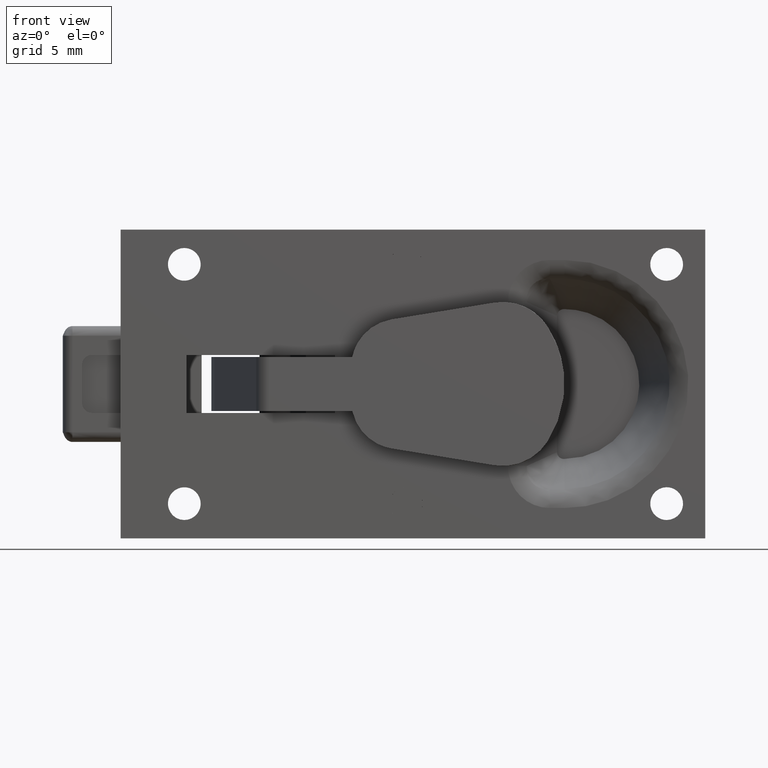
[diagram: clean part render]
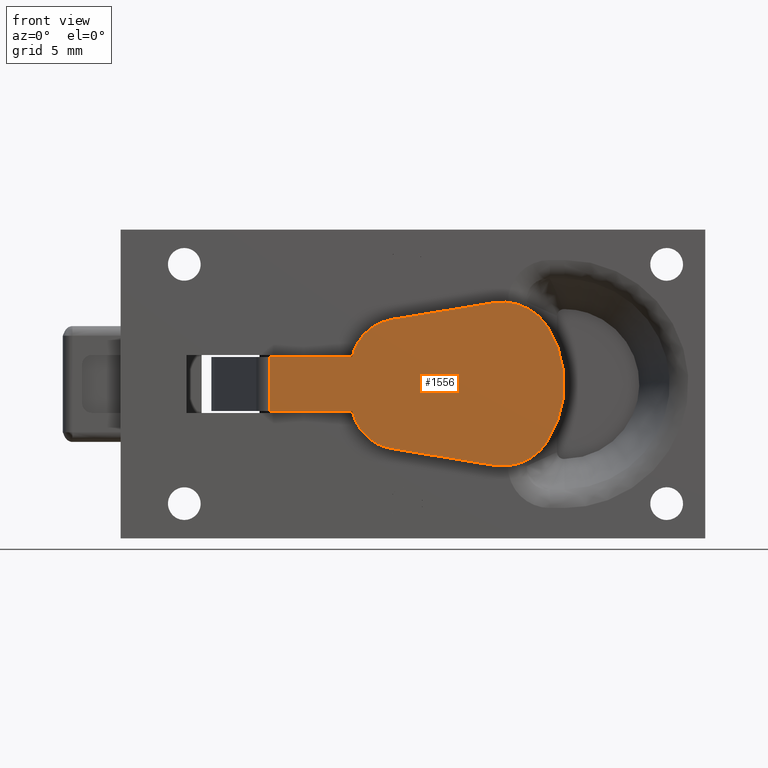
[diagram: same view with one face highlighted and labeled with its STEP entity id]
A machine part, front view. The second image highlights one B-rep face of the part: STEP entity #1556.
In plain terms, the highlighted face is a freeform B-spline surface patch.
Its self-contained STEP definition (entity closure, byte-faithful):
#1221=CARTESIAN_POINT('',(-0.301529039269911,-2.0,1.400010000000000));
#1222=VERTEX_POINT('',#1221);
#1243=CARTESIAN_POINT('',(-0.301529039269911,-2.0,-1.399993000000044));
#1244=VERTEX_POINT('',#1243);
#1258=CARTESIAN_POINT('',(-0.301529039269911,-2.0,-1.399993000000044));
#1259=CARTESIAN_POINT('',(-0.301529039269911,-2.0,1.400010000000000));
#1260=QUASI_UNIFORM_CURVE('',1,(#1258,#1259),.UNSPECIFIED.,.F.,.U.);
#1261=EDGE_CURVE('',#1244,#1222,#1260,.T.);
#1447=CARTESIAN_POINT('',(-1.065840374488280,-2.0,4.674531459337893));
#1448=CARTESIAN_POINT('',(15.764311532707801,-2.0,4.674531459337893));
#1449=CARTESIAN_POINT('',(-1.065840374488280,-2.0,-4.674531664287009));
#1450=CARTESIAN_POINT('',(15.764311532707801,-2.0,-4.674531664287009));
#1451=B_SPLINE_SURFACE_WITH_KNOTS('',1,1,((#1447,#1449),(#1448,#1450)),.UNSPECIFIED.,.F.,.F.,.U.,(2,2),(2,2),(0.0,16.830151907196079),(0.0,9.349063123624902),.UNSPECIFIED.);
#1452=CARTESIAN_POINT('',(4.000002899604265,-2.0,1.400010000000000));
#1453=VERTEX_POINT('',#1452);
#1454=CARTESIAN_POINT('',(4.000002899604265,-2.0,1.400010000000000));
#1455=CARTESIAN_POINT('',(-0.301529039269911,-2.0,1.400010000000000));
#1456=QUASI_UNIFORM_CURVE('',1,(#1454,#1455),.UNSPECIFIED.,.F.,.U.);
#1457=EDGE_CURVE('',#1453,#1222,#1456,.T.);
#1458=ORIENTED_EDGE('',*,*,#1457,.T.);
#1459=ORIENTED_EDGE('',*,*,#1261,.F.);
#1460=CARTESIAN_POINT('',(4.0,-2.0,-1.399993000000000));
#1461=VERTEX_POINT('',#1460);
#1462=CARTESIAN_POINT('',(-0.301529039269911,-2.0,-1.399993000000044));
#1463=CARTESIAN_POINT('',(4.0,-2.0,-1.399993000000000));
#1464=QUASI_UNIFORM_CURVE('',1,(#1462,#1463),.UNSPECIFIED.,.F.,.U.);
#1465=EDGE_CURVE('',#1244,#1461,#1464,.T.);
#1466=ORIENTED_EDGE('',*,*,#1465,.T.);
#1467=CARTESIAN_POINT('',(6.049462669785030,-2.0,-3.347027620360990));
#1468=VERTEX_POINT('',#1467);
#1469=CARTESIAN_POINT('',(4.0,-2.0,-1.399993000000000));
#1470=CARTESIAN_POINT('',(4.357441108211258,-2.000000000000000,-3.075904810614351));
#1471=CARTESIAN_POINT('',(6.049462669785032,-2.0,-3.347027620360978));
#1479=(BOUNDED_CURVE()B_SPLINE_CURVE(2,(#1469,#1470,#1471),.UNSPECIFIED.,.F.,.U.)CURVE()GEOMETRIC_REPRESENTATION_ITEM()QUASI_UNIFORM_CURVE()RATIONAL_B_SPLINE_CURVE((1.0,0.824833478512623,1.0))REPRESENTATION_ITEM(''));
#1480=EDGE_CURVE('',#1461,#1468,#1479,.T.);
#1481=ORIENTED_EDGE('',*,*,#1480,.T.);
#1482=CARTESIAN_POINT('',(11.369197900665201,-2.0,-4.215267344383095));
#1483=VERTEX_POINT('',#1482);
#1484=CARTESIAN_POINT('',(6.049462669785030,-2.0,-3.347027620360990));
#1485=CARTESIAN_POINT('',(11.369197900665201,-2.0,-4.215267344383095));
#1486=QUASI_UNIFORM_CURVE('',1,(#1484,#1485),.UNSPECIFIED.,.F.,.U.);
#1487=EDGE_CURVE('',#1468,#1483,#1486,.T.);
#1488=ORIENTED_EDGE('',*,*,#1487,.T.);
#1489=CARTESIAN_POINT('',(14.109771092092620,-2.0,-3.000000034159320));
#1490=VERTEX_POINT('',#1489);
#1491=CARTESIAN_POINT('',(11.369197900665201,-2.0,-4.215267344383095));
#1492=CARTESIAN_POINT('',(13.134539982985917,-2.000000000000000,-4.498531080004206));
#1493=CARTESIAN_POINT('',(14.109771092092631,-2.0,-3.000000034159325));
#1501=(BOUNDED_CURVE()B_SPLINE_CURVE(2,(#1491,#1492,#1493),.UNSPECIFIED.,.F.,.U.)CURVE()GEOMETRIC_REPRESENTATION_ITEM()QUASI_UNIFORM_CURVE()RATIONAL_B_SPLINE_CURVE((1.0,0.838384592848046,1.0))REPRESENTATION_ITEM(''));
#1502=EDGE_CURVE('',#1483,#1490,#1501,.T.);
#1503=ORIENTED_EDGE('',*,*,#1502,.T.);
#1504=CARTESIAN_POINT('',(14.109772184185260,-2.0,3.000000068318640));
#1505=VERTEX_POINT('',#1504);
#1506=CARTESIAN_POINT('',(14.109771092092620,-2.0,-3.000000034159320));
#1507=CARTESIAN_POINT('',(16.062146632457594,-2.000000000000000,-0.000000338282654));
#1508=CARTESIAN_POINT('',(14.109772184185260,-2.0,3.000000068318641));
#1516=(BOUNDED_CURVE()B_SPLINE_CURVE(2,(#1506,#1507,#1508),.UNSPECIFIED.,.F.,.U.)CURVE()GEOMETRIC_REPRESENTATION_ITEM()QUASI_UNIFORM_CURVE()RATIONAL_B_SPLINE_CURVE((1.0,0.838140369006077,1.0))REPRESENTATION_ITEM(''));
#1517=EDGE_CURVE('',#1490,#1505,#1516,.T.);
#1518=ORIENTED_EDGE('',*,*,#1517,.T.);
#1519=CARTESIAN_POINT('',(11.369197900665499,-2.0,4.215267344383145));
#1520=VERTEX_POINT('',#1519);
#1521=CARTESIAN_POINT('',(14.109772184185260,-2.0,3.000000068318640));
#1522=CARTESIAN_POINT('',(13.134540381267065,-2.000000000000000,4.498531143911510));
#1523=CARTESIAN_POINT('',(11.369197900665499,-2.0,4.215267344383143));
#1531=(BOUNDED_CURVE()B_SPLINE_CURVE(2,(#1521,#1522,#1523),.UNSPECIFIED.,.F.,.U.)CURVE()GEOMETRIC_REPRESENTATION_ITEM()QUASI_UNIFORM_CURVE()RATIONAL_B_SPLINE_CURVE((1.0,0.838384536649777,1.0))REPRESENTATION_ITEM(''));
#1532=EDGE_CURVE('',#1505,#1520,#1531,.T.);
#1533=ORIENTED_EDGE('',*,*,#1532,.T.);
#1534=CARTESIAN_POINT('',(6.049462669785030,-2.0,3.347027620360990));
#1535=VERTEX_POINT('',#1534);
#1536=CARTESIAN_POINT('',(11.369197900665499,-2.0,4.215267344383145));
#1537=CARTESIAN_POINT('',(6.049462669785030,-2.0,3.347027620360990));
#1538=QUASI_UNIFORM_CURVE('',1,(#1536,#1537),.UNSPECIFIED.,.F.,.U.);
#1539=EDGE_CURVE('',#1520,#1535,#1538,.T.);
#1540=ORIENTED_EDGE('',*,*,#1539,.T.);
#1541=CARTESIAN_POINT('',(6.049462669785032,-2.0,3.347027620360978));
#1542=CARTESIAN_POINT('',(4.357453611922082,-2.000000000000000,3.075906814159274));
#1543=CARTESIAN_POINT('',(4.000002899604271,-2.0,1.400009999999998));
#1551=(BOUNDED_CURVE()B_SPLINE_CURVE(2,(#1541,#1542,#1543),.UNSPECIFIED.,.F.,.U.)CURVE()GEOMETRIC_REPRESENTATION_ITEM()QUASI_UNIFORM_CURVE()RATIONAL_B_SPLINE_CURVE((1.0,0.824835426892286,1.0))REPRESENTATION_ITEM(''));
#1552=EDGE_CURVE('',#1535,#1453,#1551,.T.);
#1553=ORIENTED_EDGE('',*,*,#1552,.T.);
#1554=EDGE_LOOP('',(#1458,#1459,#1466,#1481,#1488,#1503,#1518,#1533,#1540,#1553));
#1555=FACE_OUTER_BOUND('',#1554,.T.);
#1556=ADVANCED_FACE('',(#1555),#1451,.F.);